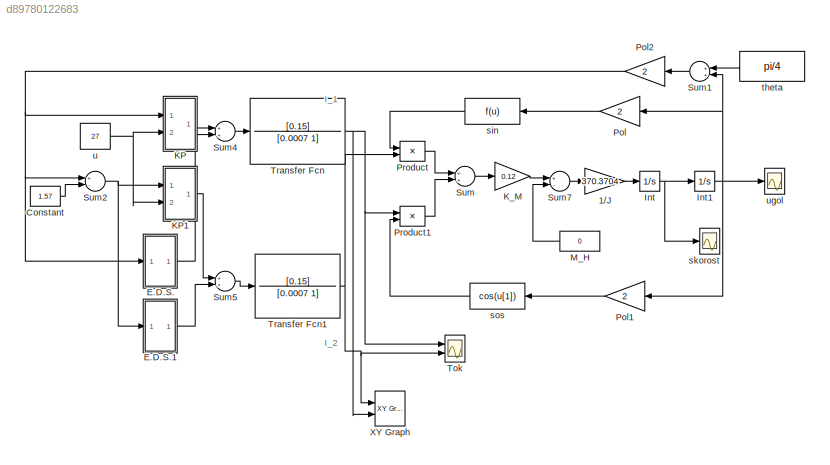
MODEL slx_d89780122683
KIND model
CONFIG AbsTol = 1e-3
CONFIG EnableMultiTasking = on
CONFIG FixedStep = auto
CONFIG MaxStep = 0.01
CONFIG MinStep = 0.0001
CONFIG RelTol = 1e-3
CONFIG SampleTimeConstraint = Unconstrained
CONFIG Solver = ode45
CONFIG SolverName = ode45
CONFIG StartTime = 0.0
CONFIG StopTime = 10
BLOCK [Gain] 1//J
  Gain = 370.3704
BLOCK [Constant] Constant
  Value = 1.57
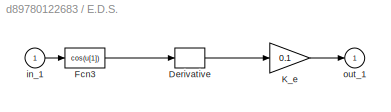
BLOCK [SubSystem] E.D.S.
  Ports = [1, 1]
  RequestExecContextInheritance = off
  ShowPortLabels = none
  Variant = off
BLOCK [Derivative] E.D.S./Derivative
BLOCK [Fcn] E.D.S./Fcn3
  Expr = cos(u[1])
BLOCK [Gain] E.D.S./K_e
  Gain = 0.1
BLOCK [Inport] E.D.S./in_1
  IconDisplay = Port number
BLOCK [Outport] E.D.S./out_1
  IconDisplay = Port number
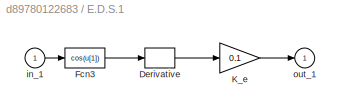
BLOCK [SubSystem] E.D.S.1
  Ports = [1, 1]
  RequestExecContextInheritance = off
  ShowPortLabels = none
  Variant = off
BLOCK [Derivative] E.D.S.1/Derivative
BLOCK [Fcn] E.D.S.1/Fcn3
  Expr = cos(u[1])
BLOCK [Gain] E.D.S.1/K_e
  Gain = 0.1
BLOCK [Inport] E.D.S.1/in_1
  IconDisplay = Port number
BLOCK [Outport] E.D.S.1/out_1
  IconDisplay = Port number
BLOCK [Integrator] Int
  Ports = [1, 1]
BLOCK [Integrator] Int1
  Ports = [1, 1]
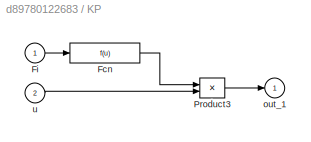
BLOCK [SubSystem] KP
  Ports = [2, 1]
  RequestExecContextInheritance = off
  ShowPortLabels = none
  Variant = off
BLOCK [Fcn] KP/Fcn
BLOCK [Inport] KP/Fi
  IconDisplay = Port number
BLOCK [Product] KP/Product3
  Ports = [2, 1]
  RndMeth = Floor
BLOCK [Outport] KP/out_1
  IconDisplay = Port number
BLOCK [Inport] KP/u
  IconDisplay = Port number
  Port = 2
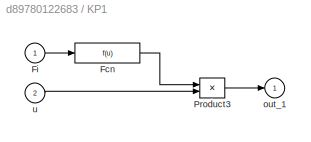
BLOCK [SubSystem] KP1
  Ports = [2, 1]
  RequestExecContextInheritance = off
  ShowPortLabels = none
  Variant = off
BLOCK [Fcn] KP1/Fcn
BLOCK [Inport] KP1/Fi
  IconDisplay = Port number
BLOCK [Product] KP1/Product3
  Ports = [2, 1]
  RndMeth = Floor
BLOCK [Outport] KP1/out_1
  IconDisplay = Port number
BLOCK [Inport] KP1/u
  IconDisplay = Port number
  Port = 2
BLOCK [Gain] K_M
  Gain = 0.12
BLOCK [Constant] M_H
  Value = 0
BLOCK [Gain] Pol
  Gain = 2
BLOCK [Gain] Pol1
  Gain = 2
BLOCK [Gain] Pol2
  Gain = 2
BLOCK [Product] Product
  Ports = [2, 1]
  RndMeth = Floor
BLOCK [Product] Product1
  Ports = [2, 1]
  RndMeth = Floor
BLOCK [Sum] Sum
  Ports = [2, 1]
BLOCK [Sum] Sum1
  Ports = [2, 1]
BLOCK [Sum] Sum2
  Inputs = +-
  Ports = [2, 1]
BLOCK [Sum] Sum4
  Ports = [2, 1]
BLOCK [Sum] Sum5
  Ports = [2, 1]
BLOCK [Sum] Sum7
  Inputs = +-
  Ports = [2, 1]
BLOCK [Scope] Tok
  NumInputPorts = 2
  Ports = [2]
  ScopeSpecificationString = Simulink.scopes.TimeScopeBlockCfg('CurrentConfiguration', extmgr.ConfigurationSet(extmgr.Configuration('Core','General UI',true),extmgr.Configuration('Core','Source UI',true),extmgr.Configuration('Sources','WiredSimulink',true,'DataLoggingSaveFormat','StructureWithTime','DataLoggingDecimation','1','DataLoggingDecimateData',true,'DataLogging',true,'DataLoggingVariableName','tok'),extmgr.Configurati...<+1653ch>
BLOCK [TransferFcn] Transfer Fcn
  Denominator = [0.0007 1]
  Numerator = [0.15]
BLOCK [TransferFcn] Transfer Fcn1
  Denominator = [0.0007 1]
  Numerator = [0.15]
BLOCK [Reference] XY Graph  REF=simulink/Sinks/XY Graph
  Ports = [2]
  SourceBlock = simulink/Sinks/XY Graph
  SourceProductBaseCode = SL
  SourceProductName = Simulink
  SourceType = XY scope.
BLOCK [Fcn] sin
BLOCK [Scope] skorost
  NumInputPorts = 1
  Ports = [1]
  ScopeSpecificationString = Simulink.scopes.TimeScopeBlockCfg('CurrentConfiguration', extmgr.ConfigurationSet(extmgr.Configuration('Core','General UI',true),extmgr.Configuration('Core','Source UI',true),extmgr.Configuration('Sources','WiredSimulink',true,'DataLoggingSaveFormat','StructureWithTime','DataLoggingDecimation','1','DataLoggingDecimateData',true,'DataLogging',true,'DataLoggingVariableName','result'),extmgr.Configur...<+1686ch>
BLOCK [Fcn] sos
  Expr = cos(u[1])
BLOCK [Constant] theta
  Value = pi/4
BLOCK [Constant] u
  Value = 27
BLOCK [Scope] ugol
  NumInputPorts = 1
  Ports = [1]
  ScopeSpecificationString = Simulink.scopes.TimeScopeBlockCfg('CurrentConfiguration', extmgr.ConfigurationSet(extmgr.Configuration('Core','General UI',true),extmgr.Configuration('Core','Source UI',true),extmgr.Configuration('Sources','WiredSimulink',true,'DataLoggingSaveFormat','Array','DataLoggingDecimation','1','DataLoggingDecimateData',true),extmgr.Configuration('Visuals','Time Domain',true,'SerializedDisplays',{struct('M...<+1571ch>
ANNOTATION (root): I_1
ANNOTATION (root): I_2
LINE 1//J:1 -> Int:1
LINE Constant:1 -> Sum2:2
LINE E.D.S./Derivative:1 -> E.D.S./K_e:1
LINE E.D.S./Fcn3:1 -> E.D.S./Derivative:1
LINE E.D.S./K_e:1 -> E.D.S./out_1:1
LINE E.D.S./in_1:1 -> E.D.S./Fcn3:1
LINE E.D.S.1/Derivative:1 -> E.D.S.1/K_e:1
LINE E.D.S.1/Fcn3:1 -> E.D.S.1/Derivative:1
LINE E.D.S.1/K_e:1 -> E.D.S.1/out_1:1
LINE E.D.S.1/in_1:1 -> E.D.S.1/Fcn3:1
LINE E.D.S.1:1 -> Sum5:2
LINE E.D.S.:1 -> Sum4:2
NET Int1:1 -> Pol1:1, Pol:1, Sum1:2, ugol:1
NET Int:1 -> Int1:1, skorost:1
LINE KP/Fcn:1 -> KP/Product3:1
LINE KP/Fi:1 -> KP/Fcn:1
LINE KP/Product3:1 -> KP/out_1:1
LINE KP/u:1 -> KP/Product3:2
LINE KP1/Fcn:1 -> KP1/Product3:1
LINE KP1/Fi:1 -> KP1/Fcn:1
LINE KP1/Product3:1 -> KP1/out_1:1
LINE KP1/u:1 -> KP1/Product3:2
LINE KP1:1 -> Sum5:1
LINE KP:1 -> Sum4:1
LINE K_M:1 -> Sum7:1
LINE M_H:1 -> Sum7:2
LINE Pol1:1 -> sos:1
NET Pol2:1 -> E.D.S.:1, KP:1, Sum2:1
LINE Pol:1 -> sin:1
LINE Product1:1 -> Sum:2
LINE Product:1 -> Sum:1
LINE Sum1:1 -> Pol2:1
NET Sum2:1 -> E.D.S.1:1, KP1:1
LINE Sum4:1 -> Transfer Fcn:1
LINE Sum5:1 -> Transfer Fcn1:1
LINE Sum7:1 -> 1//J:1
LINE Sum:1 -> K_M:1
NET Transfer Fcn1:1 -> Product:2, Tok:2, XY Graph:1
NET Transfer Fcn:1 -> Product1:1, Tok:1, XY Graph:2
LINE sin:1 -> Product:1
LINE sos:1 -> Product1:2
LINE theta:1 -> Sum1:1
NET u:1 -> KP1:2, KP:2
note: NET lines group one-source signal fan-out (src -> all destinations, sorted); 1:1 wires keep LINE
